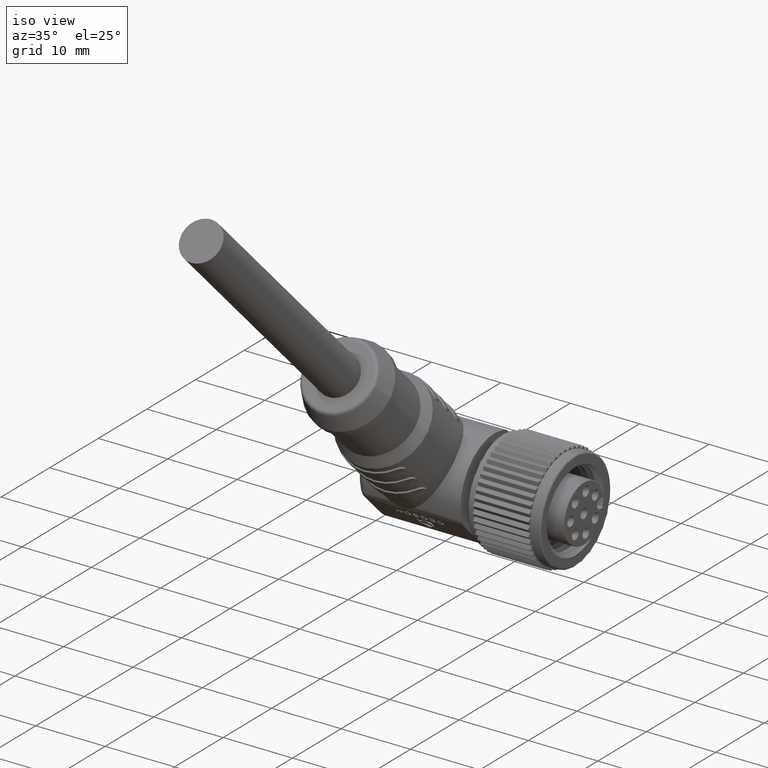
[diagram: clean part render]
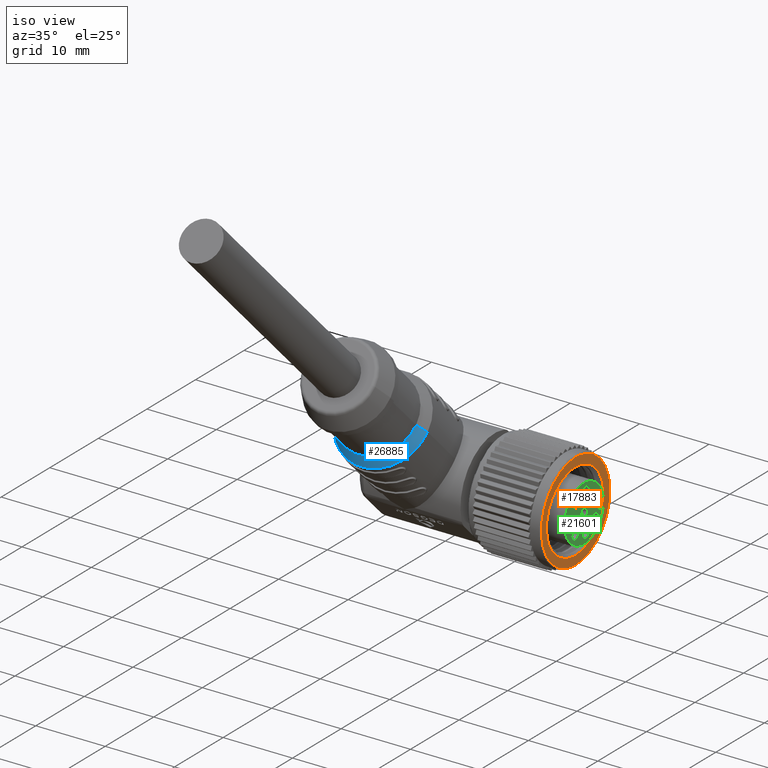
[diagram: same view with three faces highlighted in distinct colors, each labeled with its STEP entity id]
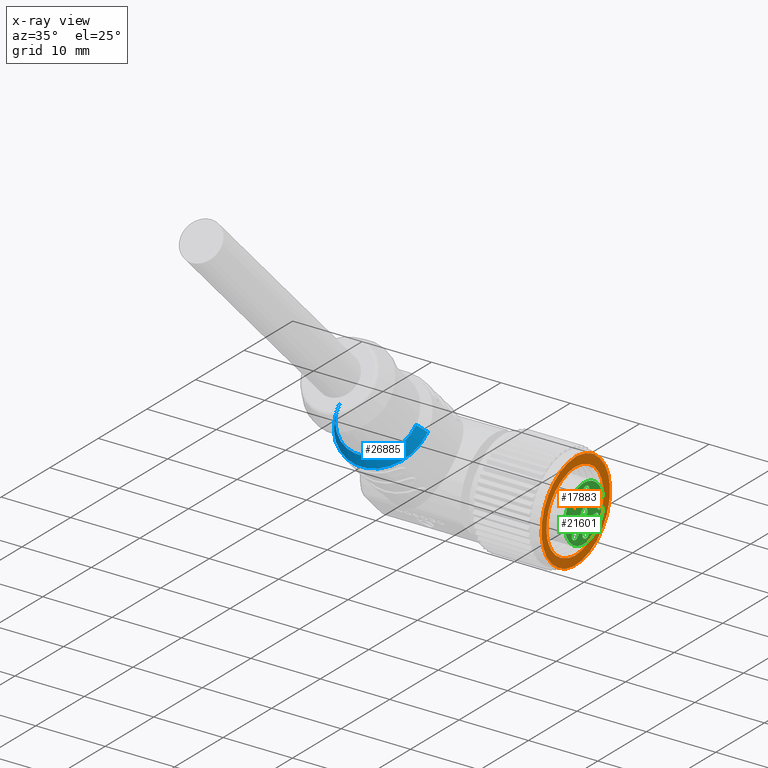
[diagram: x-ray of the same camera — body ghosted, the three highlighted faces saturated]
A machine part, iso view with three faces highlighted in distinct colors.
The next image is the same camera in x-ray (body ghosted, the three faces saturated) — at least one of them is partly hidden behind the body in this view.
Their STEP definitions:

[orange] entity #17883 — the highlighted planar face has unit normal (-1, 0, 0).
#834=CARTESIAN_POINT('',(-1.2E0,0.E0,0.E0));
#835=DIRECTION('',(1.E0,0.E0,0.E0));
#836=DIRECTION('',(0.E0,-6.286357481364E-2,-9.980221294950E-1));
#837=AXIS2_PLACEMENT_3D('',#834,#835,#836);
#844=CARTESIAN_POINT('',(-1.2E0,0.E0,0.E0));
#845=DIRECTION('',(-1.E0,0.E0,0.E0));
#846=DIRECTION('',(0.E0,0.E0,1.E0));
#847=AXIS2_PLACEMENT_3D('',#844,#845,#846);
#849=CARTESIAN_POINT('',(-1.2E0,0.E0,0.E0));
#850=DIRECTION('',(-1.E0,0.E0,0.E0));
#851=DIRECTION('',(0.E0,6.286357481364E-2,9.980221294950E-1));
#852=AXIS2_PLACEMENT_3D('',#849,#850,#851);
#854=CARTESIAN_POINT('',(-1.2E0,0.E0,0.E0));
#855=DIRECTION('',(-1.E0,0.E0,0.E0));
#856=DIRECTION('',(0.E0,-6.286357481364E-2,-9.980221294950E-1));
#857=AXIS2_PLACEMENT_3D('',#854,#855,#856);
#859=CARTESIAN_POINT('',(-1.200000348202E0,1.032471598844E-5,
9.783095943128E-6));
#860=DIRECTION('',(1.E0,0.E0,0.E0));
#861=DIRECTION('',(0.E0,-2.974502790105E-1,-9.547373102150E-1));
#862=AXIS2_PLACEMENT_3D('',#859,#860,#861);
#864=CARTESIAN_POINT('',(-1.200000040302E0,1.032471598844E-5,
9.783095943128E-6));
#865=DIRECTION('',(1.E0,0.E0,0.E0));
#866=DIRECTION('',(0.E0,0.E0,-1.E0));
#867=AXIS2_PLACEMENT_3D('',#864,#865,#866);
#869=CARTESIAN_POINT('',(-1.200000773977E0,1.032471598844E-5,
9.783095943128E-6));
#870=DIRECTION('',(1.E0,0.E0,0.E0));
#871=DIRECTION('',(0.E0,2.762835674050E-14,1.E0));
#872=AXIS2_PLACEMENT_3D('',#869,#870,#871);
#874=CARTESIAN_POINT('',(-1.199999009730E0,-1.713104236889E0,5.497772561659E0));
#875=CARTESIAN_POINT('',(-1.199999009730E0,-2.045014840991E0,5.411551656167E0));
#876=CARTESIAN_POINT('',(-1.200000467181E0,-2.682761331146E0,5.184036950767E0));
#877=CARTESIAN_POINT('',(-1.199999850272E0,-3.586031976504E0,4.668148997627E0));
#878=CARTESIAN_POINT('',(-1.200000131730E0,-4.379154242710E0,4.004613632995E0));
#879=CARTESIAN_POINT('',(-1.199999622806E0,-5.046199294925E0,3.212210734825E0));
#880=CARTESIAN_POINT('',(-1.200000792299E0,-5.393960949189E0,2.614409092377E0));
#881=CARTESIAN_POINT('',(-1.200000792299E0,-5.543276721148E0,2.296099186054E0));
#883=CARTESIAN_POINT('',(-1.200000792299E0,-5.543276721148E0,2.296099186054E0));
#884=CARTESIAN_POINT('',(-1.200000792299E0,-5.695440926478E0,1.928727955304E0));
#885=CARTESIAN_POINT('',(-1.199999658577E0,-5.921673279980E0,1.180147859213E0));
#886=CARTESIAN_POINT('',(-1.200000006530E0,-6.039150721052E0,
-7.220803271979E-8));
#887=CARTESIAN_POINT('',(-1.200000315301E0,-5.921672683789E0,
-1.180147570359E0));
#888=CARTESIAN_POINT('',(-1.199999259944E0,-5.695442317596E0,
-1.928728532991E0));
#889=CARTESIAN_POINT('',(-1.199999259944E0,-5.543274852833E0,
-2.296098413677E0));
#899=CARTESIAN_POINT('',(-1.199999177666E0,-1.712903063958E0,
-5.497837858951E0));
#900=CARTESIAN_POINT('',(-1.199999177666E0,-2.044147187082E0,
-5.411773780830E0));
#901=CARTESIAN_POINT('',(-1.200000374575E0,-2.682206729802E0,
-5.184283181454E0));
#902=CARTESIAN_POINT('',(-1.199999922487E0,-3.584550376507E0,
-4.669114841321E0));
#903=CARTESIAN_POINT('',(-1.199999935478E0,-4.377974998235E0,
-4.005828896411E0));
#904=CARTESIAN_POINT('',(-1.200000335602E0,-5.045530243056E0,
-3.213225592472E0));
#905=CARTESIAN_POINT('',(-1.199999259944E0,-5.393768432012E0,
-2.614839424515E0));
#906=CARTESIAN_POINT('',(-1.199999259944E0,-5.543274852833E0,
-2.296098413677E0));
#16076=CARTESIAN_POINT('',(-1.2E0,4.431882024358E-1,7.036056012939E0));
#16077=VERTEX_POINT('',#16076);
#16078=CARTESIAN_POINT('',(-1.2E0,0.E0,7.05E0));
#16079=VERTEX_POINT('',#16078);
#16080=CARTESIAN_POINT('',(-1.2E0,-4.052793887176E-1,-7.038341325702E0));
#16081=VERTEX_POINT('',#16080);
#16082=CARTESIAN_POINT('',(-1.2E0,-4.431882024362E-1,-7.036056012939E0));
#16083=VERTEX_POINT('',#16082);
#16084=VERTEX_POINT('',#899);
#16085=VERTEX_POINT('',#906);
#16086=CARTESIAN_POINT('',(-1.200000773977E0,1.032471614754E-5,
5.758515653768E0));
#16087=CARTESIAN_POINT('',(-1.200000773977E0,-1.712177868020E0,
5.498082304918E0));
#16088=VERTEX_POINT('',#16086);
#16089=VERTEX_POINT('',#16087);
#16090=CARTESIAN_POINT('',(-1.200000040302E0,1.032471604380E-5,
-5.758496821241E0));
#16091=VERTEX_POINT('',#16090);
#16092=VERTEX_POINT('',#881);
#17858=CARTESIAN_POINT('',(-1.2E0,0.E0,0.E0));
#17859=DIRECTION('',(-1.E0,0.E0,0.E0));
#17860=DIRECTION('',(0.E0,1.E0,0.E0));
#17861=AXIS2_PLACEMENT_3D('',#17858,#17859,#17860);
#17862=PLANE('',#17861);
#17863=ORIENTED_EDGE('',*,*,#17831,.T.);
#17864=ORIENTED_EDGE('',*,*,#17852,.T.);
#17865=ORIENTED_EDGE('',*,*,#17850,.F.);
#17866=ORIENTED_EDGE('',*,*,#17848,.T.);
#17867=EDGE_LOOP('',(#17863,#17864,#17865,#17866));
#17868=FACE_OUTER_BOUND('',#17867,.F.);
#17870=ORIENTED_EDGE('',*,*,#17869,.F.);
#17872=ORIENTED_EDGE('',*,*,#17871,.T.);
#17874=ORIENTED_EDGE('',*,*,#17873,.T.);
#17876=ORIENTED_EDGE('',*,*,#17875,.T.);
#17878=ORIENTED_EDGE('',*,*,#17877,.T.);
#17880=ORIENTED_EDGE('',*,*,#17879,.T.);
#17881=EDGE_LOOP('',(#17870,#17872,#17874,#17876,#17878,#17880));
#17882=FACE_BOUND('',#17881,.F.);
#17883=ADVANCED_FACE('',(#17868,#17882),#17862,.F.);
#838=CIRCLE('',#837,7.05E0);
#848=CIRCLE('',#847,7.05E0);
#853=CIRCLE('',#852,7.05E0);
#858=CIRCLE('',#857,7.05E0);
#863=CIRCLE('',#862,5.758506296441E0);
#868=CIRCLE('',#867,5.758506604337E0);
#873=CIRCLE('',#872,5.758505870672E0);
#882=B_SPLINE_CURVE_WITH_KNOTS('',3,(#874,#875,#876,#877,#878,#879,#880,#881),
.UNSPECIFIED.,.F.,.F.,(4,1,1,1,1,4),(0.E0,2.E-1,4.E-1,6.E-1,8.E-1,1.E0),
.UNSPECIFIED.);
#890=B_SPLINE_CURVE_WITH_KNOTS('',3,(#883,#884,#885,#886,#887,#888,#889),
.UNSPECIFIED.,.F.,.F.,(4,1,1,1,4),(0.E0,2.5E-1,5.E-1,7.5E-1,1.E0),
.UNSPECIFIED.);
#907=B_SPLINE_CURVE_WITH_KNOTS('',3,(#899,#900,#901,#902,#903,#904,#905,#906),
.UNSPECIFIED.,.F.,.F.,(4,1,1,1,1,4),(0.E0,2.E-1,4.E-1,6.E-1,8.E-1,1.E0),
.UNSPECIFIED.);
#17831=EDGE_CURVE('',#16079,#16077,#848,.T.);
#17848=EDGE_CURVE('',#16083,#16079,#858,.T.);
#17850=EDGE_CURVE('',#16083,#16081,#838,.T.);
#17852=EDGE_CURVE('',#16077,#16081,#853,.T.);
#17869=EDGE_CURVE('',#16084,#16085,#907,.T.);
#17871=EDGE_CURVE('',#16084,#16091,#863,.T.);
#17873=EDGE_CURVE('',#16091,#16088,#868,.T.);
#17875=EDGE_CURVE('',#16088,#16089,#873,.T.);
#17877=EDGE_CURVE('',#16089,#16092,#882,.T.);
#17879=EDGE_CURVE('',#16092,#16085,#890,.T.);

[blue] entity #26885 — the highlighted conical surface has half-angle 30 deg.
#6324=DIRECTION('',(-5.000000000004E-1,-6.123724356956E-1,6.123724356956E-1));
#6325=VECTOR('',#6324,1.799999999997E0);
#6326=CARTESIAN_POINT('',(-1.51E1,-1.060660171780E1,1.060660171780E1));
#6327=LINE('',#6326,#6325);
#6333=DIRECTION('',(5.000000000004E-1,-6.123724356956E-1,6.123724356956E-1));
#6334=VECTOR('',#6333,1.799999999997E0);
#6335=CARTESIAN_POINT('',(-2.79E1,-1.060660171780E1,1.060660171780E1));
#6336=LINE('',#6335,#6334);
#6337=CARTESIAN_POINT('',(-2.15E1,-1.170887210205E1,1.170887210205E1));
#6338=DIRECTION('',(0.E0,-7.071067811865E-1,7.071067811865E-1));
#6339=DIRECTION('',(-1.E0,0.E0,0.E0));
#6340=AXIS2_PLACEMENT_3D('',#6337,#6338,#6339);
#6342=CARTESIAN_POINT('',(-2.15E1,-1.060660171780E1,1.060660171780E1));
#6343=DIRECTION('',(0.E0,7.071067811865E-1,-7.071067811865E-1));
#6344=DIRECTION('',(1.E0,0.E0,0.E0));
#6345=AXIS2_PLACEMENT_3D('',#6342,#6343,#6344);
#14069=CARTESIAN_POINT('',(-2.79E1,-1.060660171780E1,1.060660171780E1));
#14070=VERTEX_POINT('',#14069);
#14071=CARTESIAN_POINT('',(-1.51E1,-1.060660171780E1,1.060660171780E1));
#14072=VERTEX_POINT('',#14071);
#14128=CARTESIAN_POINT('',(-2.7E1,-1.170887210205E1,1.170887210205E1));
#14129=VERTEX_POINT('',#14128);
#14130=CARTESIAN_POINT('',(-1.6E1,-1.170887210205E1,1.170887210205E1));
#14131=VERTEX_POINT('',#14130);
#26873=CARTESIAN_POINT('',(-2.15E1,-1.115773690992E1,1.115773690992E1));
#26874=DIRECTION('',(0.E0,7.071067811865E-1,-7.071067811865E-1));
#26875=DIRECTION('',(-1.E0,0.E0,0.E0));
#26876=AXIS2_PLACEMENT_3D('',#26873,#26874,#26875);
#26877=CONICAL_SURFACE('',#26876,5.949999999997E0,3.E1);
#26878=ORIENTED_EDGE('',*,*,#26863,.T.);
#26880=ORIENTED_EDGE('',*,*,#26879,.T.);
#26881=ORIENTED_EDGE('',*,*,#26866,.F.);
#26882=ORIENTED_EDGE('',*,*,#26580,.T.);
#26883=EDGE_LOOP('',(#26878,#26880,#26881,#26882));
#26884=FACE_OUTER_BOUND('',#26883,.F.);
#26885=ADVANCED_FACE('',(#26884),#26877,.T.);
#6341=CIRCLE('',#6340,5.499999999998E0);
#6346=CIRCLE('',#6345,6.399999999996E0);
#26580=EDGE_CURVE('',#14072,#14070,#6346,.T.);
#26863=EDGE_CURVE('',#14070,#14129,#6336,.T.);
#26866=EDGE_CURVE('',#14072,#14131,#6327,.T.);
#26879=EDGE_CURVE('',#14129,#14131,#6341,.T.);

[green] entity #21601 — the highlighted planar face has unit normal (1, 0, 0).
#1984=DIRECTION('',(0.E0,1.E0,3.446538432539E-14));
#1985=VECTOR('',#1984,5.540584095412E-1);
#1986=CARTESIAN_POINT('',(0.E0,3.375E0,7.5E-1));
#1987=LINE('',#1986,#1985);
#2003=CARTESIAN_POINT('',(0.E0,0.E0,0.E0));
#2004=DIRECTION('',(-1.E0,0.E0,0.E0));
#2005=DIRECTION('',(0.E0,9.822646028111E-1,-1.875000001717E-1));
#2006=AXIS2_PLACEMENT_3D('',#2003,#2004,#2005);
#2008=CARTESIAN_POINT('',(0.E0,0.E0,0.E0));
#2009=DIRECTION('',(-1.E0,0.E0,0.E0));
#2010=DIRECTION('',(0.E0,-9.999989538225E-1,1.446497094017E-3));
#2011=AXIS2_PLACEMENT_3D('',#2008,#2009,#2010);
#2013=CARTESIAN_POINT('',(0.E0,3.375E0,5.E-2));
#2014=DIRECTION('',(1.E0,0.E0,0.E0));
#2015=DIRECTION('',(0.E0,0.E0,1.E0));
#2016=AXIS2_PLACEMENT_3D('',#2013,#2014,#2015);
#2018=CARTESIAN_POINT('',(0.E0,3.375E0,-5.E-2));
#2019=DIRECTION('',(1.E0,0.E0,0.E0));
#2020=DIRECTION('',(0.E0,-1.E0,3.394506897791E-13));
#2021=AXIS2_PLACEMENT_3D('',#2018,#2019,#2020);
#2023=CARTESIAN_POINT('',(0.E0,0.E0,0.E0));
#2024=DIRECTION('',(1.E0,0.E0,0.E0));
#2025=DIRECTION('',(0.E0,1.E0,0.E0));
#2026=AXIS2_PLACEMENT_3D('',#2023,#2024,#2025);
#2028=CARTESIAN_POINT('',(0.E0,0.E0,0.E0));
#2029=DIRECTION('',(1.E0,0.E0,0.E0));
#2030=DIRECTION('',(0.E0,-1.E0,0.E0));
#2031=AXIS2_PLACEMENT_3D('',#2028,#2029,#2030);
#2033=CARTESIAN_POINT('',(0.E0,2.306344061850E0,1.497757346291E0));
#2034=DIRECTION('',(1.E0,0.E0,0.E0));
#2035=DIRECTION('',(0.E0,-8.386705679454E-1,-5.446390350150E-1));
#2036=AXIS2_PLACEMENT_3D('',#2033,#2034,#2035);
#2038=CARTESIAN_POINT('',(0.E0,2.306344061850E0,1.497757346291E0));
#2039=DIRECTION('',(1.E0,0.E0,0.E0));
#2040=DIRECTION('',(0.E0,8.386705679454E-1,5.446390350150E-1));
#2041=AXIS2_PLACEMENT_3D('',#2038,#2039,#2040);
#2043=CARTESIAN_POINT('',(0.E0,3.827260276402E-1,2.723237189039E0));
#2044=DIRECTION('',(1.E0,0.E0,0.E0));
#2045=DIRECTION('',(0.E0,-1.391731009601E-1,-9.902680687416E-1));
#2046=AXIS2_PLACEMENT_3D('',#2043,#2044,#2045);
#2048=CARTESIAN_POINT('',(0.E0,3.827260276402E-1,2.723237189039E0));
#2049=DIRECTION('',(1.E0,0.E0,0.E0));
#2050=DIRECTION('',(0.E0,1.391731009601E-1,9.902680687416E-1));
#2051=AXIS2_PLACEMENT_3D('',#2048,#2049,#2050);
#2053=CARTESIAN_POINT('',(0.E0,-1.804162329724E0,2.075451345613E0));
#2054=DIRECTION('',(1.E0,0.E0,0.E0));
#2055=DIRECTION('',(0.E0,6.560590289905E-1,-7.547095802228E-1));
#2056=AXIS2_PLACEMENT_3D('',#2053,#2054,#2055);
#2058=CARTESIAN_POINT('',(0.E0,-1.804162329724E0,2.075451345613E0));
#2059=DIRECTION('',(1.E0,0.E0,0.E0));
#2060=DIRECTION('',(0.E0,-6.560590289905E-1,7.547095802228E-1));
#2061=AXIS2_PLACEMENT_3D('',#2058,#2059,#2060);
#2063=CARTESIAN_POINT('',(0.E0,-2.75E0,0.E0));
#2064=DIRECTION('',(1.E0,0.E0,0.E0));
#2065=DIRECTION('',(0.E0,1.E0,0.E0));
#2066=AXIS2_PLACEMENT_3D('',#2063,#2064,#2065);
#2068=CARTESIAN_POINT('',(0.E0,-2.75E0,0.E0));
#2069=DIRECTION('',(1.E0,0.E0,0.E0));
#2070=DIRECTION('',(0.E0,-1.E0,0.E0));
#2071=AXIS2_PLACEMENT_3D('',#2068,#2069,#2070);
#2073=CARTESIAN_POINT('',(0.E0,-1.804162329724E0,-2.075451345613E0));
#2074=DIRECTION('',(1.E0,0.E0,0.E0));
#2075=DIRECTION('',(0.E0,6.560590289905E-1,7.547095802228E-1));
#2076=AXIS2_PLACEMENT_3D('',#2073,#2074,#2075);
#2078=CARTESIAN_POINT('',(0.E0,-1.804162329724E0,-2.075451345613E0));
#2079=DIRECTION('',(1.E0,0.E0,0.E0));
#2080=DIRECTION('',(0.E0,-6.560590289905E-1,-7.547095802228E-1));
#2081=AXIS2_PLACEMENT_3D('',#2078,#2079,#2080);
#2083=CARTESIAN_POINT('',(0.E0,3.827260276402E-1,-2.723237189039E0));
#2084=DIRECTION('',(1.E0,0.E0,0.E0));
#2085=DIRECTION('',(0.E0,-1.391731009601E-1,9.902680687416E-1));
#2086=AXIS2_PLACEMENT_3D('',#2083,#2084,#2085);
#2088=CARTESIAN_POINT('',(0.E0,3.827260276402E-1,-2.723237189039E0));
#2089=DIRECTION('',(1.E0,0.E0,0.E0));
#2090=DIRECTION('',(0.E0,1.391731009601E-1,-9.902680687416E-1));
#2091=AXIS2_PLACEMENT_3D('',#2088,#2089,#2090);
#2093=CARTESIAN_POINT('',(0.E0,2.306344061850E0,-1.497757346291E0));
#2094=DIRECTION('',(1.E0,0.E0,0.E0));
#2095=DIRECTION('',(0.E0,-8.386705679454E-1,5.446390350150E-1));
#2096=AXIS2_PLACEMENT_3D('',#2093,#2094,#2095);
#2098=CARTESIAN_POINT('',(0.E0,2.306344061850E0,-1.497757346291E0));
#2099=DIRECTION('',(1.E0,0.E0,0.E0));
#2100=DIRECTION('',(0.E0,8.386705679454E-1,-5.446390350150E-1));
#2101=AXIS2_PLACEMENT_3D('',#2098,#2099,#2100);
#2128=DIRECTION('',(6.310095404683E-14,-1.E0,3.466576179451E-14));
#2129=VECTOR('',#2128,5.540584522524E-1);
#2130=CARTESIAN_POINT('',(-3.496161693484E-14,3.929058452253E0,-7.5E-1));
#2131=LINE('',#2130,#2129);
#2151=DIRECTION('',(0.E0,0.E0,1.E0));
#2152=VECTOR('',#2151,9.999999999978E-2);
#2153=CARTESIAN_POINT('',(0.E0,2.675E0,-4.999999999992E-2));
#2154=LINE('',#2153,#2152);
#16186=CARTESIAN_POINT('',(0.E0,3.929058411375E0,7.5E-1));
#16188=VERTEX_POINT('',#16186);
#16189=CARTESIAN_POINT('',(0.E0,3.375E0,7.5E-1));
#16190=VERTEX_POINT('',#16189);
#16191=CARTESIAN_POINT('',(0.E0,2.675E0,4.999999999958E-2));
#16192=VERTEX_POINT('',#16191);
#16193=CARTESIAN_POINT('',(0.E0,-3.999995815290E0,5.785988376067E-3));
#16194=VERTEX_POINT('',#16193);
#16195=CARTESIAN_POINT('',(0.E0,3.929058411244E0,-7.500000006868E-1));
#16196=VERTEX_POINT('',#16195);
#16197=CARTESIAN_POINT('',(0.E0,2.675E0,-4.999999999992E-2));
#16198=VERTEX_POINT('',#16197);
#16199=CARTESIAN_POINT('',(0.E0,3.375000000001E0,-7.5E-1));
#16200=VERTEX_POINT('',#16199);
#16201=CARTESIAN_POINT('',(0.E0,7.E-1,0.E0));
#16202=CARTESIAN_POINT('',(0.E0,-7.E-1,0.E0));
#16203=VERTEX_POINT('',#16201);
#16204=VERTEX_POINT('',#16202);
#16205=CARTESIAN_POINT('',(0.E0,1.719274664288E0,1.116510021780E0));
#16206=CARTESIAN_POINT('',(0.E0,2.893413459412E0,1.879004670802E0));
#16207=VERTEX_POINT('',#16205);
#16208=VERTEX_POINT('',#16206);
#16209=CARTESIAN_POINT('',(0.E0,2.853048569681E-1,2.030049540920E0));
#16210=CARTESIAN_POINT('',(0.E0,4.801471983123E-1,3.416424837158E0));
#16211=VERTEX_POINT('',#16209);
#16212=VERTEX_POINT('',#16210);
#16213=CARTESIAN_POINT('',(0.E0,-1.344921009431E0,1.547154639457E0));
#16214=CARTESIAN_POINT('',(0.E0,-2.263403650017E0,2.603748051769E0));
#16215=VERTEX_POINT('',#16213);
#16216=VERTEX_POINT('',#16214);
#16217=CARTESIAN_POINT('',(0.E0,-2.05E0,0.E0));
#16218=CARTESIAN_POINT('',(0.E0,-3.45E0,0.E0));
#16219=VERTEX_POINT('',#16217);
#16220=VERTEX_POINT('',#16218);
#16221=CARTESIAN_POINT('',(0.E0,-1.344921009431E0,-1.547154639457E0));
#16222=CARTESIAN_POINT('',(0.E0,-2.263403650017E0,-2.603748051769E0));
#16223=VERTEX_POINT('',#16221);
#16224=VERTEX_POINT('',#16222);
#16225=CARTESIAN_POINT('',(0.E0,2.853048569681E-1,-2.030049540920E0));
#16226=CARTESIAN_POINT('',(0.E0,4.801471983123E-1,-3.416424837158E0));
#16227=VERTEX_POINT('',#16225);
#16228=VERTEX_POINT('',#16226);
#16229=CARTESIAN_POINT('',(0.E0,1.719274664288E0,-1.116510021780E0));
#16230=CARTESIAN_POINT('',(0.E0,2.893413459412E0,-1.879004670802E0));
#16231=VERTEX_POINT('',#16229);
#16232=VERTEX_POINT('',#16230);
#21534=CARTESIAN_POINT('',(0.E0,-1.727158776298E0,0.E0));
#21535=DIRECTION('',(1.E0,0.E0,0.E0));
#21536=DIRECTION('',(0.E0,0.E0,-1.E0));
#21537=AXIS2_PLACEMENT_3D('',#21534,#21535,#21536);
#21538=PLANE('',#21537);
#21540=ORIENTED_EDGE('',*,*,#21539,.T.);
#21542=ORIENTED_EDGE('',*,*,#21541,.T.);
#21543=ORIENTED_EDGE('',*,*,#21513,.F.);
#21544=ORIENTED_EDGE('',*,*,#21525,.T.);
#21546=ORIENTED_EDGE('',*,*,#21545,.F.);
#21548=ORIENTED_EDGE('',*,*,#21547,.T.);
#21550=ORIENTED_EDGE('',*,*,#21549,.F.);
#21551=EDGE_LOOP('',(#21540,#21542,#21543,#21544,#21546,#21548,#21550));
#21552=FACE_OUTER_BOUND('',#21551,.F.);
#21554=ORIENTED_EDGE('',*,*,#21553,.T.);
#21556=ORIENTED_EDGE('',*,*,#21555,.T.);
#21557=EDGE_LOOP('',(#21554,#21556));
#21558=FACE_BOUND('',#21557,.F.);
#21560=ORIENTED_EDGE('',*,*,#21559,.T.);
#21562=ORIENTED_EDGE('',*,*,#21561,.T.);
#21563=EDGE_LOOP('',(#21560,#21562));
#21564=FACE_BOUND('',#21563,.F.);
#21566=ORIENTED_EDGE('',*,*,#21565,.T.);
#21568=ORIENTED_EDGE('',*,*,#21567,.T.);
#21569=EDGE_LOOP('',(#21566,#21568));
#21570=FACE_BOUND('',#21569,.F.);
#21572=ORIENTED_EDGE('',*,*,#21571,.T.);
#21574=ORIENTED_EDGE('',*,*,#21573,.T.);
#21575=EDGE_LOOP('',(#21572,#21574));
#21576=FACE_BOUND('',#21575,.F.);
#21578=ORIENTED_EDGE('',*,*,#21577,.T.);
#21580=ORIENTED_EDGE('',*,*,#21579,.T.);
#21581=EDGE_LOOP('',(#21578,#21580));
#21582=FACE_BOUND('',#21581,.F.);
#21584=ORIENTED_EDGE('',*,*,#21583,.T.);
#21586=ORIENTED_EDGE('',*,*,#21585,.T.);
#21587=EDGE_LOOP('',(#21584,#21586));
#21588=FACE_BOUND('',#21587,.F.);
#21590=ORIENTED_EDGE('',*,*,#21589,.T.);
#21592=ORIENTED_EDGE('',*,*,#21591,.T.);
#21593=EDGE_LOOP('',(#21590,#21592));
#21594=FACE_BOUND('',#21593,.F.);
#21596=ORIENTED_EDGE('',*,*,#21595,.T.);
#21598=ORIENTED_EDGE('',*,*,#21597,.T.);
#21599=EDGE_LOOP('',(#21596,#21598));
#21600=FACE_BOUND('',#21599,.F.);
#21601=ADVANCED_FACE('',(#21552,#21558,#21564,#21570,#21576,#21582,#21588,
#21594,#21600),#21538,.T.);
#2007=CIRCLE('',#2006,4.E0);
#2012=CIRCLE('',#2011,4.E0);
#2017=CIRCLE('',#2016,7.E-1);
#2022=CIRCLE('',#2021,7.E-1);
#2027=CIRCLE('',#2026,7.E-1);
#2032=CIRCLE('',#2031,7.E-1);
#2037=CIRCLE('',#2036,7.E-1);
#2042=CIRCLE('',#2041,7.E-1);
#2047=CIRCLE('',#2046,7.E-1);
#2052=CIRCLE('',#2051,7.E-1);
#2057=CIRCLE('',#2056,7.E-1);
#2062=CIRCLE('',#2061,7.E-1);
#2067=CIRCLE('',#2066,7.E-1);
#2072=CIRCLE('',#2071,7.E-1);
#2077=CIRCLE('',#2076,7.E-1);
#2082=CIRCLE('',#2081,7.E-1);
#2087=CIRCLE('',#2086,7.E-1);
#2092=CIRCLE('',#2091,7.E-1);
#2097=CIRCLE('',#2096,7.E-1);
#2102=CIRCLE('',#2101,7.E-1);
#21513=EDGE_CURVE('',#16190,#16188,#1987,.T.);
#21525=EDGE_CURVE('',#16190,#16192,#2017,.T.);
#21539=EDGE_CURVE('',#16196,#16194,#2007,.T.);
#21541=EDGE_CURVE('',#16194,#16188,#2012,.T.);
#21545=EDGE_CURVE('',#16198,#16192,#2154,.T.);
#21547=EDGE_CURVE('',#16198,#16200,#2022,.T.);
#21549=EDGE_CURVE('',#16196,#16200,#2131,.T.);
#21553=EDGE_CURVE('',#16203,#16204,#2027,.T.);
#21555=EDGE_CURVE('',#16204,#16203,#2032,.T.);
#21559=EDGE_CURVE('',#16207,#16208,#2037,.T.);
#21561=EDGE_CURVE('',#16208,#16207,#2042,.T.);
#21565=EDGE_CURVE('',#16211,#16212,#2047,.T.);
#21567=EDGE_CURVE('',#16212,#16211,#2052,.T.);
#21571=EDGE_CURVE('',#16215,#16216,#2057,.T.);
#21573=EDGE_CURVE('',#16216,#16215,#2062,.T.);
#21577=EDGE_CURVE('',#16219,#16220,#2067,.T.);
#21579=EDGE_CURVE('',#16220,#16219,#2072,.T.);
#21583=EDGE_CURVE('',#16223,#16224,#2077,.T.);
#21585=EDGE_CURVE('',#16224,#16223,#2082,.T.);
#21589=EDGE_CURVE('',#16227,#16228,#2087,.T.);
#21591=EDGE_CURVE('',#16228,#16227,#2092,.T.);
#21595=EDGE_CURVE('',#16231,#16232,#2097,.T.);
#21597=EDGE_CURVE('',#16232,#16231,#2102,.T.);